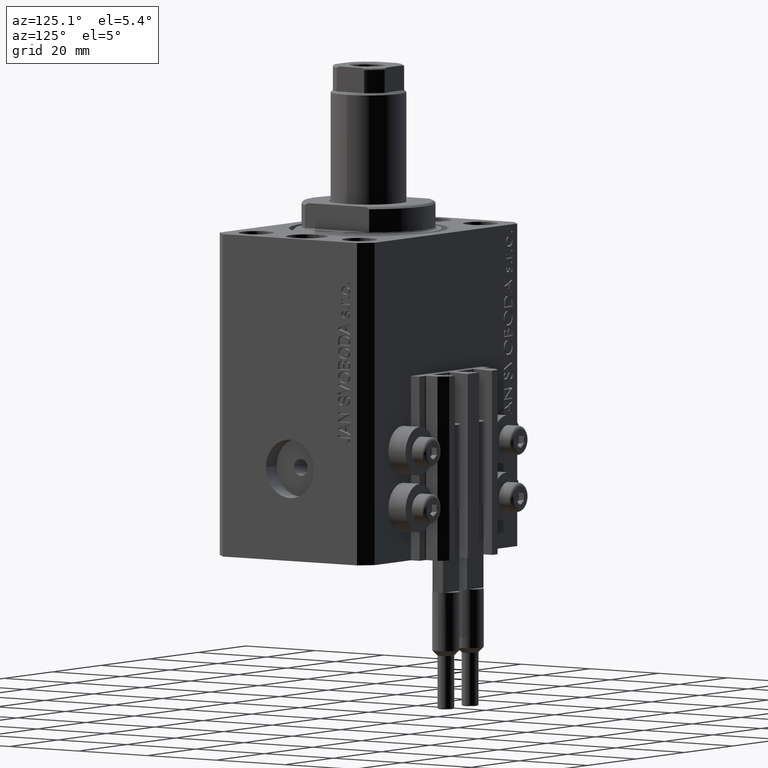
[diagram: clean part render]
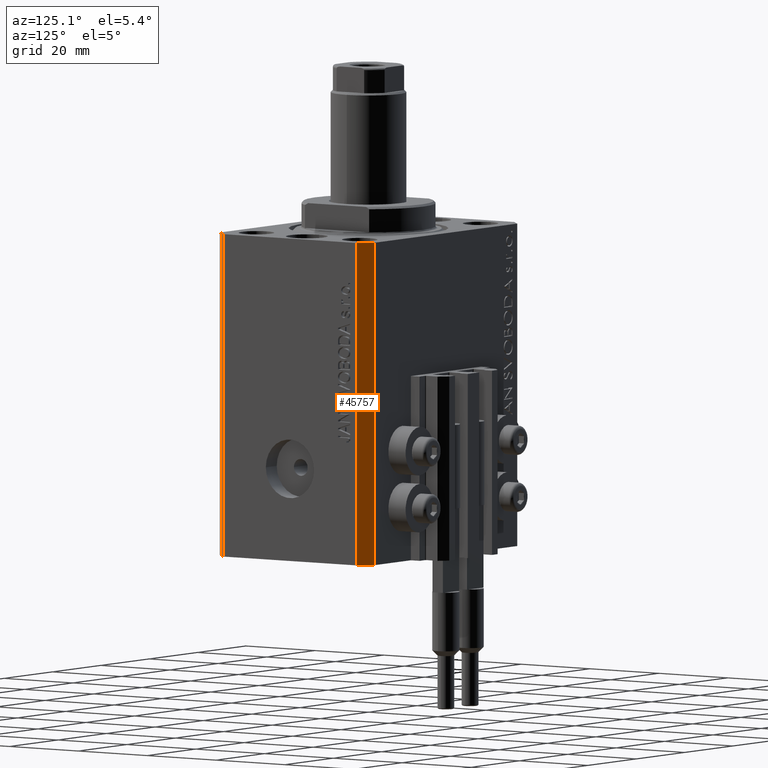
[diagram: same view with one face highlighted and labeled with its STEP entity id]
A machine part, auxiliary view. The second image highlights one B-rep face of the part: STEP entity #45757.
In plain terms, the highlighted planar face has unit normal (0.7071, 0.7071, 0).
Its self-contained STEP definition (entity closure, byte-faithful):
#746 = VECTOR ( 'NONE', #45980, 1000.000000000000000 ) ;
#828 = EDGE_LOOP ( 'NONE', ( #31897, #31557, #7187, #46027 ) ) ;
#2469 = DIRECTION ( 'NONE',  ( 0.000000000000000000, 0.000000000000000000, 1.000000000000000000 ) ) ;
#4080 = FACE_OUTER_BOUND ( 'NONE', #828, .T. ) ;
#7187 = ORIENTED_EDGE ( 'NONE', *, *, #43841, .T. ) ;
#8510 = VERTEX_POINT ( 'NONE', #12328 ) ;
#9736 = CARTESIAN_POINT ( 'NONE',  ( 32.49999999999702993, 19.49999999999945999, -77.00000000000000000 ) ) ;
#12208 = CARTESIAN_POINT ( 'NONE',  ( 29.49999999999707967, 22.49999999999952038, -77.00000000000000000 ) ) ;
#12328 = CARTESIAN_POINT ( 'NONE',  ( 32.49999999999702993, 19.49999999999945999, -77.00000000000000000 ) ) ;
#14099 = VERTEX_POINT ( 'NONE', #29719 ) ;
#16187 = DIRECTION ( 'NONE',  ( 0.7071067811865606734, 0.7071067811865344721, -0.000000000000000000 ) ) ;
#20518 = EDGE_CURVE ( 'NONE', #43926, #14099, #46830, .T. ) ;
#20586 = EDGE_CURVE ( 'NONE', #8510, #43926, #42959, .T. ) ;
#21047 = VECTOR ( 'NONE', #28384, 1000.000000000000000 ) ;
#22882 = DIRECTION ( 'NONE',  ( 0.000000000000000000, 0.000000000000000000, 1.000000000000000000 ) ) ;
#27079 = CARTESIAN_POINT ( 'NONE',  ( 32.49999999999702993, 19.49999999999945999, -77.00000000000000000 ) ) ;
#27539 = LINE ( 'NONE', #34563, #746 ) ;
#27904 = AXIS2_PLACEMENT_3D ( 'NONE', #27079, #16187, #41879 ) ;
#28384 = DIRECTION ( 'NONE',  ( -0.7071067811865344721, 0.7071067811865606734, 0.000000000000000000 ) ) ;
#29719 = CARTESIAN_POINT ( 'NONE',  ( 29.49999999999707967, 22.49999999999952038, 0.000000000000000000 ) ) ;
#30525 = VERTEX_POINT ( 'NONE', #30533 ) ;
#30533 = CARTESIAN_POINT ( 'NONE',  ( 29.49999999999707967, 22.49999999999952038, -77.00000000000000000 ) ) ;
#31557 = ORIENTED_EDGE ( 'NONE', *, *, #20586, .F. ) ;
#31897 = ORIENTED_EDGE ( 'NONE', *, *, #20518, .F. ) ;
#32942 = VECTOR ( 'NONE', #22882, 1000.000000000000000 ) ;
#33405 = VECTOR ( 'NONE', #2469, 1000.000000000000000 ) ;
#33563 = EDGE_CURVE ( 'NONE', #30525, #14099, #46163, .T. ) ;
#34563 = CARTESIAN_POINT ( 'NONE',  ( 32.49999999999702993, 19.49999999999945999, -77.00000000000000000 ) ) ;
#36333 = PLANE ( 'NONE',  #27904 ) ;
#41879 = DIRECTION ( 'NONE',  ( -0.7071067811865344721, 0.7071067811865606734, 0.000000000000000000 ) ) ;
#42959 = LINE ( 'NONE', #9736, #33405 ) ;
#43439 = CARTESIAN_POINT ( 'NONE',  ( 32.49999999999702993, 19.49999999999945999, 0.000000000000000000 ) ) ;
#43841 = EDGE_CURVE ( 'NONE', #8510, #30525, #27539, .T. ) ;
#43926 = VERTEX_POINT ( 'NONE', #47839 ) ;
#45757 = ADVANCED_FACE ( 'NONE', ( #4080 ), #36333, .T. ) ;
#45980 = DIRECTION ( 'NONE',  ( -0.7071067811865344721, 0.7071067811865606734, 0.000000000000000000 ) ) ;
#46027 = ORIENTED_EDGE ( 'NONE', *, *, #33563, .T. ) ;
#46163 = LINE ( 'NONE', #12208, #32942 ) ;
#46830 = LINE ( 'NONE', #43439, #21047 ) ;
#47839 = CARTESIAN_POINT ( 'NONE',  ( 32.49999999999702993, 19.49999999999945999, 0.000000000000000000 ) ) ;